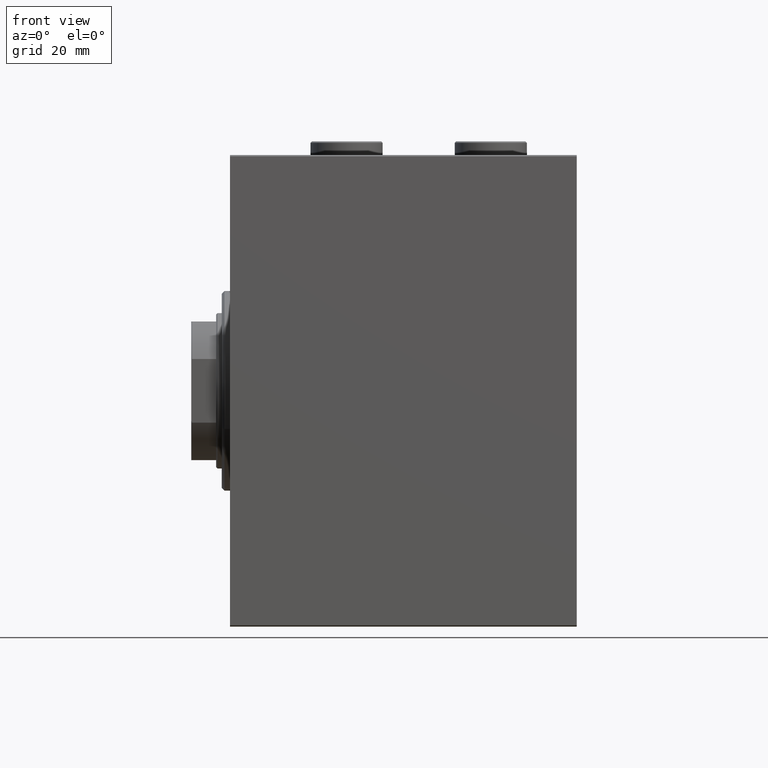
[diagram: clean part render]
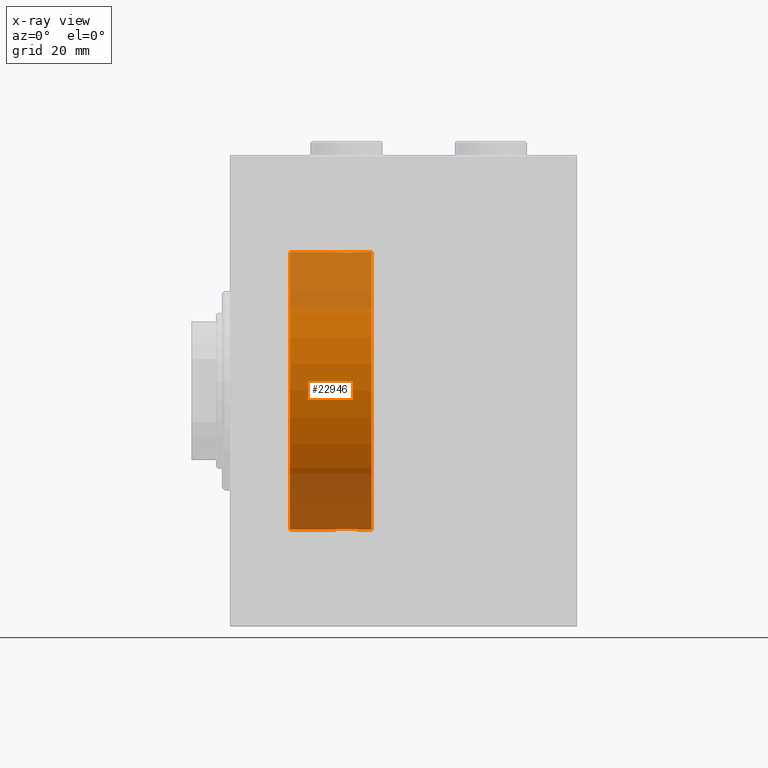
[diagram: x-ray — body ghosted, one internal face saturated and labeled with its STEP entity id]
A machine part, front view, then the same camera in x-ray: the body is ghosted and one INTERNAL B-rep face — a face not visible from any outside direction — is saturated and labeled: STEP entity #22946.
In plain terms, the highlighted cylindrical surface (partial cylindrical patch) has radius 50 mm, axis along (-1, -0, -0).
Its self-contained STEP definition (entity closure, byte-faithful):
#122 = CARTESIAN_POINT ( 'NONE',  ( 37.88750298919665482, -1.108337267831482009, -49.98846998601261760 ) ) ;
#688 = EDGE_CURVE ( 'NONE', #31282, #1715, #29203, .T. ) ;
#1466 = CARTESIAN_POINT ( 'NONE',  ( 41.44002132304352415, -4.222042462213121183, 49.82145436824653473 ) ) ;
#1514 = CARTESIAN_POINT ( 'NONE',  ( 51.00000000000000000, 0.000000000000000000, 50.00000000000000000 ) ) ;
#1715 = VERTEX_POINT ( 'NONE', #24628 ) ;
#1724 = CARTESIAN_POINT ( 'NONE',  ( 46.25000000000000000, 6.123233970928975205E-15, -50.00000000000000000 ) ) ;
#1749 = CARTESIAN_POINT ( 'NONE',  ( 46.25000000000000000, -1.456404791334935357E-15, 50.00000000000000000 ) ) ;
#2037 = LINE ( 'NONE', #36008, #32559 ) ;
#2362 = VECTOR ( 'NONE', #24986, 1000.000000000000000 ) ;
#2517 = CARTESIAN_POINT ( 'NONE',  ( 51.00000000000000000, 6.123233995736766085E-15, -50.00000000000000000 ) ) ;
#2625 = CARTESIAN_POINT ( 'NONE',  ( 39.19302168160690769, -3.203153387937303087, -49.89767833571684008 ) ) ;
#3292 = EDGE_CURVE ( 'NONE', #33687, #37870, #21634, .T. ) ;
#3508 = CYLINDRICAL_SURFACE ( 'NONE', #21930, 50.00000000000000000 ) ;
#3794 = EDGE_CURVE ( 'NONE', #22019, #37870, #2037, .T. ) ;
#4227 = CARTESIAN_POINT ( 'NONE',  ( 37.74999999999999289, -0.2773743941468536645, 50.00000000000000000 ) ) ;
#4675 = CARTESIAN_POINT ( 'NONE',  ( 37.77689247200999745, -0.5531336717329046193, 49.99769193709644099 ) ) ;
#4900 = CARTESIAN_POINT ( 'NONE',  ( 38.79696438048011942, -2.807099414226279510, 49.92152599098507437 ) ) ;
#5087 = ORIENTED_EDGE ( 'NONE', *, *, #3794, .F. ) ;
#5147 = ORIENTED_EDGE ( 'NONE', *, *, #30305, .T. ) ;
#5428 = EDGE_LOOP ( 'NONE', ( #30143, #6962, #17723, #5147, #13508, #5087, #21020, #6733 ) ) ;
#5634 = DIRECTION ( 'NONE',  ( 0.000000000000000000, 0.000000000000000000, 1.000000000000000000 ) ) ;
#5799 = CARTESIAN_POINT ( 'NONE',  ( 46.22242635520781562, -0.5587117664567141651, 49.99763378604805553 ) ) ;
#6057 = CARTESIAN_POINT ( 'NONE',  ( 44.13136399446156588, -3.687400765141517045, -49.86408552998297239 ) ) ;
#6102 = CARTESIAN_POINT ( 'NONE',  ( 51.00000000000000000, 6.123233995736766085E-15, -50.00000000000000000 ) ) ;
#6638 = EDGE_CURVE ( 'NONE', #22019, #14748, #15692, .T. ) ;
#6733 = ORIENTED_EDGE ( 'NONE', *, *, #16101, .F. ) ;
#6954 = CARTESIAN_POINT ( 'NONE',  ( 42.28395287026697247, -4.249777379711388470, -49.81906655360197789 ) ) ;
#6962 = ORIENTED_EDGE ( 'NONE', *, *, #688, .T. ) ;
#7020 = VECTOR ( 'NONE', #26696, 1000.000000000000000 ) ;
#7355 = B_SPLINE_CURVE_WITH_KNOTS ( 'NONE', 3,
 ( #1724, #15636, #12203, #39990, #36591, #8795, #29985, #40217, #12652, #26577, #27025, #6057, #30447, #24047, #41351, #34765, #6954, #44769, #27254, #34542, #13343, #44312, #14015, #31123, #2625, #10151, #31342, #38163, #34315, #13115, #122, #37940, #30895, #41128 ),
 .UNSPECIFIED., .F., .F.,
 ( 4, 2, 2, 2, 2, 2, 2, 2, 2, 2, 2, 2, 2, 2, 2, 2, 4 ),
 ( 0.01329343152928757349, 0.01412407817529635554, 0.01495472482130513932, 0.01578537146731392310, 0.01661601811332270515, 0.01744666475933148719, 0.01827731140534026924, 0.01910795805134905129, 0.01993860469735783680, 0.02076925134336661885, 0.02159989798937540090, 0.02243054463538418294, 0.02326119128139296499, 0.02409183792740174704, 0.02492248457341052909, 0.02575313121941931460, 0.02658377786542809665 ),
 .UNSPECIFIED. ) ;
#7368 = CARTESIAN_POINT ( 'NONE',  ( 51.00000000000000000, 0.000000000000000000, 0.000000000000000000 ) ) ;
#7591 = DIRECTION ( 'NONE',  ( -1.000000000000000000, -0.000000000000000000, -0.000000000000000000 ) ) ;
#7868 = CARTESIAN_POINT ( 'NONE',  ( 37.96727357902688738, -1.369753890039652200, 49.98188917176553048 ) ) ;
#8534 = CARTESIAN_POINT ( 'NONE',  ( 45.81839248987871116, -1.886522330773416911, 49.96505190380066352 ) ) ;
#8795 = CARTESIAN_POINT ( 'NONE',  ( 45.82100581985224608, -1.881229021238117749, -49.96525240872482954 ) ) ;
#8989 = CARTESIAN_POINT ( 'NONE',  ( 45.19921927961281938, -2.811461347331110083, 49.92127983148853332 ) ) ;
#9241 = CARTESIAN_POINT ( 'NONE',  ( 21.60000000000000142, 6.123233995736766085E-15, -50.00000000000000000 ) ) ;
#9662 = CARTESIAN_POINT ( 'NONE',  ( 37.75000000000000711, -2.480770331693776875E-23, 50.00000000000000000 ) ) ;
#10151 = CARTESIAN_POINT ( 'NONE',  ( 38.80078072038718062, -2.811461347331092320, -49.92127983148853332 ) ) ;
#11722 = CARTESIAN_POINT ( 'NONE',  ( 39.18846933484581285, -3.199146701881674382, 49.89793607725460589 ) ) ;
#12171 = CARTESIAN_POINT ( 'NONE',  ( 46.11249701080335228, -1.108337267831491335, 49.98846998601261049 ) ) ;
#12203 = CARTESIAN_POINT ( 'NONE',  ( 46.22310752799001676, -0.5531336717328987351, -49.99769193709645521 ) ) ;
#12393 = CARTESIAN_POINT ( 'NONE',  ( 44.80697831839310652, -3.203153387937322183, 49.89767833571684719 ) ) ;
#12450 = CARTESIAN_POINT ( 'NONE',  ( 37.75000000000000711, 3.968053759906218216E-15, -50.00000000000000000 ) ) ;
#12652 = CARTESIAN_POINT ( 'NONE',  ( 45.20303561951989479, -2.807099414226266632, -49.92152599098507437 ) ) ;
#13115 = CARTESIAN_POINT ( 'NONE',  ( 37.96920203844656783, -1.375411031076034130, -49.98173289062310687 ) ) ;
#13343 = CARTESIAN_POINT ( 'NONE',  ( 40.63289352445425351, -4.033756670430834745, -49.83713703490973757 ) ) ;
#13508 = ORIENTED_EDGE ( 'NONE', *, *, #3292, .T. ) ;
#14015 = CARTESIAN_POINT ( 'NONE',  ( 39.87368355124921493, -3.690299572754706325, -49.86386974736159772 ) ) ;
#14748 = VERTEX_POINT ( 'NONE', #1749 ) ;
#15374 = CARTESIAN_POINT ( 'NONE',  ( 45.37519984081966840, -2.597781786597462172, 49.93300953359122474 ) ) ;
#15636 = CARTESIAN_POINT ( 'NONE',  ( 46.25000000000000711, -0.2773743941468470586, -50.00000000000000711 ) ) ;
#15692 = B_SPLINE_CURVE_WITH_KNOTS ( 'NONE', 3,
 ( #21771, #4227, #4675, #32034, #7868, #28607, #29053, #42929, #4900, #11722, #38624, #28384, #42269, #26317, #26096, #1466, #36333, #22658, #19925, #22883, #40185, #25868, #39956, #43154, #12393, #8989, #15374, #16057, #8534, #22435, #12171, #5799, #19704, #40418 ),
 .UNSPECIFIED., .F., .F.,
 ( 4, 2, 2, 2, 2, 2, 2, 2, 2, 2, 2, 2, 2, 2, 2, 2, 4 ),
 ( 0.01329343152928754573, 0.01412407817529632778, 0.01495472482130510983, 0.01578537146731389187, 0.01661601811332267392, 0.01744666475933145597, 0.01827731140534023802, 0.01910795805134902006, 0.01993860469735780558, 0.02076925134336658763, 0.02159989798937536967, 0.02243054463538415519, 0.02326119128139293724, 0.02409183792740172275, 0.02492248457341050133, 0.02575313121941928685, 0.02658377786542807236 ),
 .UNSPECIFIED. ) ;
#16057 = CARTESIAN_POINT ( 'NONE',  ( 45.68602832121950286, -2.133925816755179117, 49.95498245321557818 ) ) ;
#16101 = EDGE_CURVE ( 'NONE', #32105, #14748, #33195, .T. ) ;
#17712 = CARTESIAN_POINT ( 'NONE',  ( 51.00000000000000000, 6.123233995736766085E-15, -50.00000000000000000 ) ) ;
#17723 = ORIENTED_EDGE ( 'NONE', *, *, #25089, .T. ) ;
#19704 = CARTESIAN_POINT ( 'NONE',  ( 46.25000000000001421, -0.2808785465865648034, 50.00000000000001421 ) ) ;
#19925 = CARTESIAN_POINT ( 'NONE',  ( 42.55408564880149669, -4.222816005855207777, 49.82138837911247009 ) ) ;
#21020 = ORIENTED_EDGE ( 'NONE', *, *, #6638, .T. ) ;
#21634 = CIRCLE ( 'NONE', #24534, 50.00000000000000000 ) ;
#21771 = CARTESIAN_POINT ( 'NONE',  ( 37.75000000000000711, -2.480770331693776875E-23, 50.00000000000000000 ) ) ;
#21930 = AXIS2_PLACEMENT_3D ( 'NONE', #7368, #7591, #28555 ) ;
#22019 = VERTEX_POINT ( 'NONE', #9662 ) ;
#22435 = CARTESIAN_POINT ( 'NONE',  ( 46.03079796155343928, -1.375411031076041901, 49.98173289062310687 ) ) ;
#22658 = CARTESIAN_POINT ( 'NONE',  ( 42.27724927037918690, -4.250219976861644433, 49.81902879621014080 ) ) ;
#22883 = CARTESIAN_POINT ( 'NONE',  ( 43.09737617879037685, -4.115209769591108291, 49.83039196709103891 ) ) ;
#22946 = ADVANCED_FACE ( 'NONE', ( #28119 ), #3508, .F. ) ;
#23032 = CARTESIAN_POINT ( 'NONE',  ( 51.00000000000000000, 0.000000000000000000, 50.00000000000000000 ) ) ;
#23174 = DIRECTION ( 'NONE',  ( -1.000000000000000000, 0.000000000000000000, 0.000000000000000000 ) ) ;
#24047 = CARTESIAN_POINT ( 'NONE',  ( 43.37333436579038448, -4.031616700143171528, -49.83731072121799599 ) ) ;
#24534 = AXIS2_PLACEMENT_3D ( 'NONE', #26158, #23174, #5634 ) ;
#24628 = CARTESIAN_POINT ( 'NONE',  ( 46.25000000000000000, 6.123233970928975205E-15, -50.00000000000000000 ) ) ;
#24986 = DIRECTION ( 'NONE',  ( -1.000000000000000000, -0.000000000000000000, -0.000000000000000000 ) ) ;
#25089 = EDGE_CURVE ( 'NONE', #1715, #41971, #7355, .T. ) ;
#25868 = CARTESIAN_POINT ( 'NONE',  ( 43.88217049484444487, -3.820681512513379730, 49.85392475515401145 ) ) ;
#25890 = CARTESIAN_POINT ( 'NONE',  ( 51.00000000000000000, 0.000000000000000000, 0.000000000000000000 ) ) ;
#26096 = CARTESIAN_POINT ( 'NONE',  ( 40.89676703965783133, -4.113647494206481348, 49.83052139214890985 ) ) ;
#26158 = CARTESIAN_POINT ( 'NONE',  ( 21.60000000000000142, 0.000000000000000000, 0.000000000000000000 ) ) ;
#26317 = CARTESIAN_POINT ( 'NONE',  ( 40.62666563420964394, -4.031616700143185739, 49.83731072121799599 ) ) ;
#26365 = DIRECTION ( 'NONE',  ( -1.000000000000000000, -0.000000000000000000, -0.000000000000000000 ) ) ;
#26577 = CARTESIAN_POINT ( 'NONE',  ( 44.81153066515420136, -3.199146701881660171, -49.89793607725462010 ) ) ;
#26696 = DIRECTION ( 'NONE',  ( -1.000000000000000000, -0.000000000000000000, -0.000000000000000000 ) ) ;
#27025 = CARTESIAN_POINT ( 'NONE',  ( 44.59312720885954917, -3.378657745070611895, -49.88595615988430154 ) ) ;
#27254 = CARTESIAN_POINT ( 'NONE',  ( 41.44591435119851752, -4.222816005855191790, -49.82138837911247720 ) ) ;
#28119 = FACE_OUTER_BOUND ( 'NONE', #5428, .T. ) ;
#28384 = CARTESIAN_POINT ( 'NONE',  ( 39.86863600553844833, -3.687400765141529924, 49.86408552998297949 ) ) ;
#28555 = DIRECTION ( 'NONE',  ( 0.000000000000000000, 0.000000000000000000, 1.000000000000000000 ) ) ;
#28607 = CARTESIAN_POINT ( 'NONE',  ( 38.17899418014774682, -1.881229021238125743, 49.96525240872482954 ) ) ;
#28852 = DIRECTION ( 'NONE',  ( -1.000000000000000000, 0.000000000000000000, 0.000000000000000000 ) ) ;
#29053 = CARTESIAN_POINT ( 'NONE',  ( 38.31062844320614857, -2.128188802142364722, 49.95522967821975158 ) ) ;
#29203 = LINE ( 'NONE', #2517, #7020 ) ;
#29985 = CARTESIAN_POINT ( 'NONE',  ( 45.68937155679385853, -2.128188802142354508, -49.95522967821975158 ) ) ;
#30143 = ORIENTED_EDGE ( 'NONE', *, *, #33550, .F. ) ;
#30305 = EDGE_CURVE ( 'NONE', #41971, #33687, #35017, .T. ) ;
#30447 = CARTESIAN_POINT ( 'NONE',  ( 43.88744739392799943, -3.818052230167706007, -49.85412671291931730 ) ) ;
#30895 = CARTESIAN_POINT ( 'NONE',  ( 37.75000000000001421, -0.2808785465865586972, -50.00000000000001421 ) ) ;
#31123 = CARTESIAN_POINT ( 'NONE',  ( 39.41179785323798512, -3.382416624899766244, -49.88570010427955026 ) ) ;
#31282 = VERTEX_POINT ( 'NONE', #6102 ) ;
#31342 = CARTESIAN_POINT ( 'NONE',  ( 38.62480015918035292, -2.597781786597455067, -49.93300953359122474 ) ) ;
#32034 = CARTESIAN_POINT ( 'NONE',  ( 37.88568086693992143, -1.101350136471743291, 49.98862054280449030 ) ) ;
#32105 = VERTEX_POINT ( 'NONE', #23032 ) ;
#32559 = VECTOR ( 'NONE', #43498, 1000.000000000000000 ) ;
#33195 = LINE ( 'NONE', #1514, #42933 ) ;
#33550 = EDGE_CURVE ( 'NONE', #31282, #32105, #39525, .T. ) ;
#33687 = VERTEX_POINT ( 'NONE', #9241 ) ;
#34315 = CARTESIAN_POINT ( 'NONE',  ( 38.18160751012128884, -1.886522330773408695, -49.96505190380065642 ) ) ;
#34542 = CARTESIAN_POINT ( 'NONE',  ( 40.90262382120962315, -4.115209769591094968, -49.83039196709103891 ) ) ;
#34765 = CARTESIAN_POINT ( 'NONE',  ( 42.55997867695646164, -4.222042462213109637, -49.82145436824654183 ) ) ;
#35017 = LINE ( 'NONE', #17712, #2362 ) ;
#36008 = CARTESIAN_POINT ( 'NONE',  ( 51.00000000000000000, 0.000000000000000000, 50.00000000000000000 ) ) ;
#36056 = CARTESIAN_POINT ( 'NONE',  ( 21.60000000000000142, 0.000000000000000000, 50.00000000000000000 ) ) ;
#36333 = CARTESIAN_POINT ( 'NONE',  ( 41.71604712973302043, -4.249777379711404457, 49.81906655360197789 ) ) ;
#36591 = CARTESIAN_POINT ( 'NONE',  ( 46.03272642097310552, -1.369753890039644872, -49.98188917176551627 ) ) ;
#37870 = VERTEX_POINT ( 'NONE', #36056 ) ;
#37940 = CARTESIAN_POINT ( 'NONE',  ( 37.77757364479219149, -0.5587117664567073927, -49.99763378604802000 ) ) ;
#38163 = CARTESIAN_POINT ( 'NONE',  ( 38.31397167878049714, -2.133925816755172455, -49.95498245321557818 ) ) ;
#38624 = CARTESIAN_POINT ( 'NONE',  ( 39.40687279114044372, -3.378657745070624774, 49.88595615988428733 ) ) ;
#39525 = CIRCLE ( 'NONE', #43922, 50.00000000000000000 ) ;
#39956 = CARTESIAN_POINT ( 'NONE',  ( 44.12631644875080639, -3.690299572754719204, 49.86386974736159772 ) ) ;
#39979 = DIRECTION ( 'NONE',  ( 0.000000000000000000, 0.000000000000000000, 1.000000000000000000 ) ) ;
#39990 = CARTESIAN_POINT ( 'NONE',  ( 46.11431913306007147, -1.101350136471736407, -49.98862054280446898 ) ) ;
#40185 = CARTESIAN_POINT ( 'NONE',  ( 43.36710647554575360, -4.033756670430847180, 49.83713703490975178 ) ) ;
#40217 = CARTESIAN_POINT ( 'NONE',  ( 45.37881717263738324, -2.593114840406115729, -49.93325460257640458 ) ) ;
#40418 = CARTESIAN_POINT ( 'NONE',  ( 46.25000000000000000, -1.456404791334935357E-15, 50.00000000000000000 ) ) ;
#41128 = CARTESIAN_POINT ( 'NONE',  ( 37.75000000000000711, 3.968053759906218216E-15, -50.00000000000000000 ) ) ;
#41351 = CARTESIAN_POINT ( 'NONE',  ( 43.10323296034215446, -4.113647494206469801, -49.83052139214892406 ) ) ;
#41971 = VERTEX_POINT ( 'NONE', #12450 ) ;
#42269 = CARTESIAN_POINT ( 'NONE',  ( 40.11255260607202899, -3.818052230167721106, 49.85412671291931730 ) ) ;
#42929 = CARTESIAN_POINT ( 'NONE',  ( 38.62118282736263097, -2.593114840406127275, 49.93325460257640458 ) ) ;
#42933 = VECTOR ( 'NONE', #26365, 1000.000000000000000 ) ;
#43154 = CARTESIAN_POINT ( 'NONE',  ( 44.58820214676200777, -3.382416624899779123, 49.88570010427956447 ) ) ;
#43498 = DIRECTION ( 'NONE',  ( -1.000000000000000000, -0.000000000000000000, -0.000000000000000000 ) ) ;
#43922 = AXIS2_PLACEMENT_3D ( 'NONE', #25890, #28852, #39979 ) ;
#44312 = CARTESIAN_POINT ( 'NONE',  ( 40.11782950515556934, -3.820681512513366851, -49.85392475515399724 ) ) ;
#44769 = CARTESIAN_POINT ( 'NONE',  ( 41.72275072962082021, -4.250219976861628446, -49.81902879621016211 ) ) ;